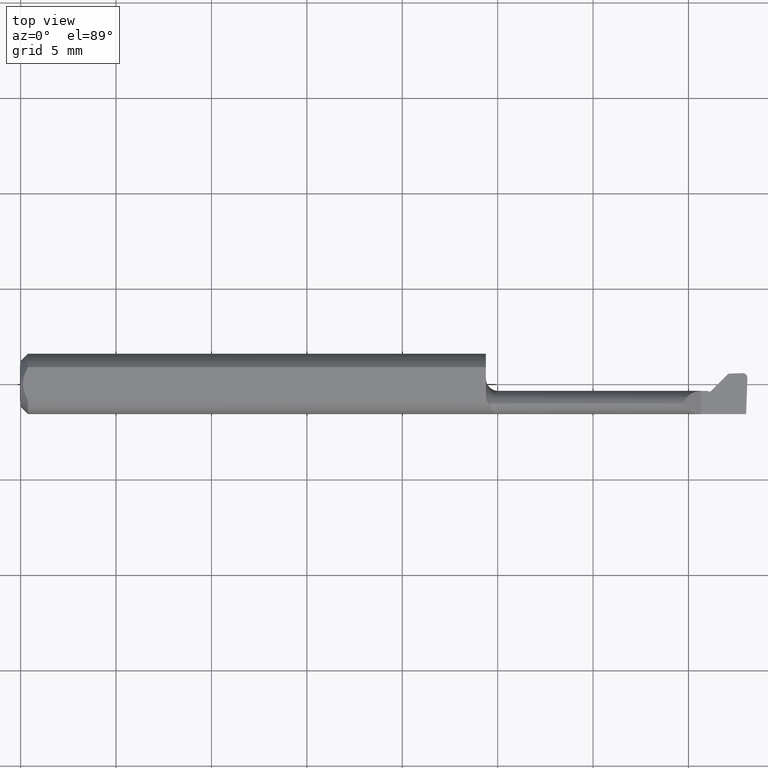
[diagram: clean part render]
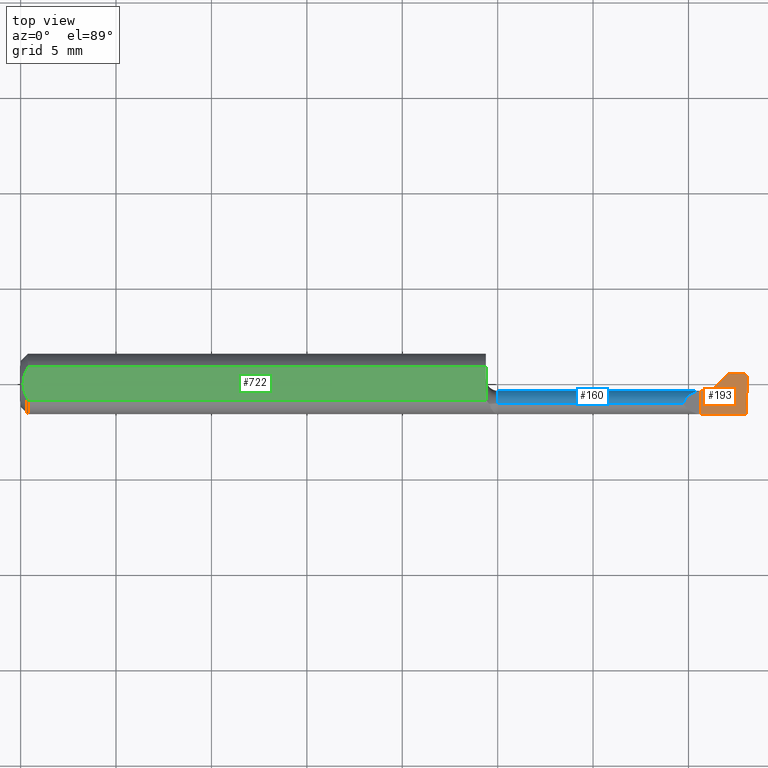
[diagram: same view with three faces highlighted in distinct colors, each labeled with its STEP entity id]
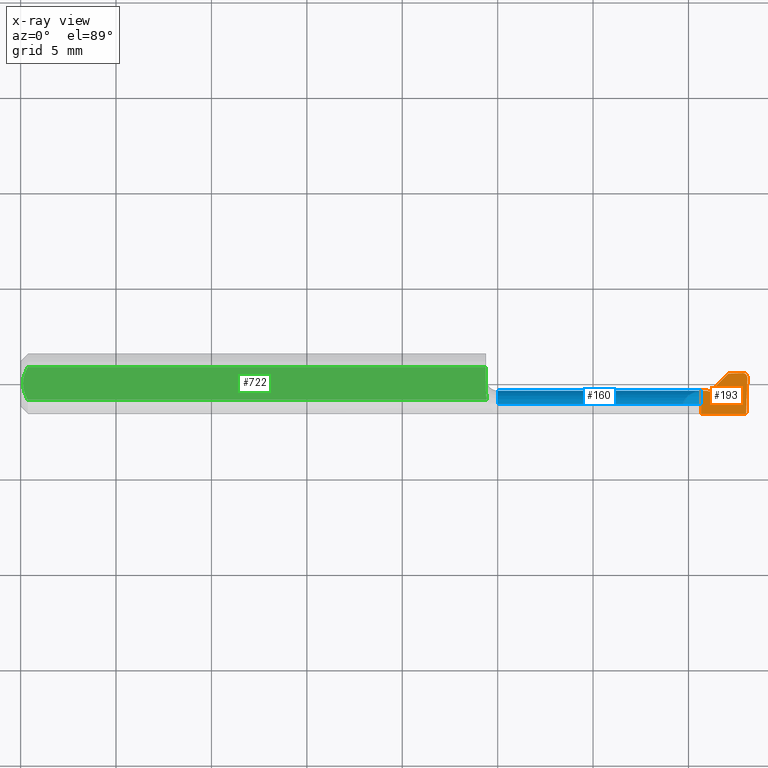
[diagram: x-ray of the same camera — body ghosted, the three highlighted faces saturated]
A machine part, top view with three faces highlighted in distinct colors.
The next image is the same camera in x-ray (body ghosted, the three faces saturated) — at least one of them is partly hidden behind the body in this view.
Their STEP definitions:

[orange] entity #193 — the highlighted planar face has unit normal (-0, 0, -1).
#17 = VERTEX_POINT ( 'NONE', #121 ) ;
#19 = CARTESIAN_POINT ( 'NONE',  ( 1.404000000000000137, 0.07629532499999999717, -1.868634782302818344E-17 ) ) ;
#26 = VECTOR ( 'NONE', #220, 39.37007874015748143 ) ;
#28 = CARTESIAN_POINT ( 'NONE',  ( 1.489860275369516485, 0.02229009242530491722, -3.414809992080329023E-17 ) ) ;
#33 = CARTESIAN_POINT ( 'NONE',  ( 1.489637975266641767, 0.02228815012281870622, -3.414809992080329023E-17 ) ) ;
#45 = CARTESIAN_POINT ( 'NONE',  ( 1.424396830779669498, -0.01434999999999999991, -3.414809992080329023E-17 ) ) ;
#48 = VERTEX_POINT ( 'NONE', #232 ) ;
#77 = CARTESIAN_POINT ( 'NONE',  ( 1.489860275369516485, 0.02229009242530491722, -3.414809992080329023E-17 ) ) ;
#85 = CARTESIAN_POINT ( 'NONE',  ( 1.418322500980937706, -0.01527816118568727476, -3.414809992080329023E-17 ) ) ;
#90 = CARTESIAN_POINT ( 'NONE',  ( 1.489860275369516485, 0.02229009242530491722, -3.414809992080329023E-17 ) ) ;
#100 = CARTESIAN_POINT ( 'NONE',  ( 1.459999999999999964, 0.02125316922033035003, -1.868634782302818344E-17 ) ) ;
#107 = CARTESIAN_POINT ( 'NONE',  ( 1.404000000000000137, -0.06234999999999997489, -1.868634782302818344E-17 ) ) ;
#121 = CARTESIAN_POINT ( 'NONE',  ( 1.424396830779669498, -0.01434999999999999991, -3.414809992080329023E-17 ) ) ;
#124 = CARTESIAN_POINT ( 'NONE',  ( 1.501625826761487925, 0.07286055374312545851, -1.868634782302818344E-17 ) ) ;
#129 = DIRECTION ( 'NONE',  ( -0.000000000000000000, 0.000000000000000000, -1.000000000000000000 ) ) ;
#144 = FACE_OUTER_BOUND ( 'NONE', #531, .T. ) ;
#159 = VERTEX_POINT ( 'NONE', #591 ) ;
#165 = CARTESIAN_POINT ( 'NONE',  ( 0.9600000000000001865, -0.01435000000000000338, -1.868634782302818344E-17 ) ) ;
#172 =( BOUNDED_CURVE ( )  B_SPLINE_CURVE ( 3, ( #551, #815, #216, #28 ),
 .UNSPECIFIED., .F., .T. ) 
 B_SPLINE_CURVE_WITH_KNOTS ( ( 4, 4 ),
 ( 1.910170056356173651, 3.471551771640491779 ),
 .UNSPECIFIED. ) 
 CURVE ( )  GEOMETRIC_REPRESENTATION_ITEM ( )  RATIONAL_B_SPLINE_CURVE ( ( 1.000000000000000000, 0.8069516682904512850, 0.8069516682904512850, 1.000000000000000000 ) ) 
 REPRESENTATION_ITEM ( '' )  );
#188 = DIRECTION ( 'NONE',  ( 0.9993908270190959842, 0.03489949670249409969, 0.000000000000000000 ) ) ;
#190 = ORIENTED_EDGE ( 'NONE', *, *, #774, .T. ) ;
#192 = DIRECTION ( 'NONE',  ( 0.03516126301290131706, 0.9993816516143056994, 0.000000000000000000 ) ) ;
#193 = ADVANCED_FACE ( 'NONE', ( #144 ), #530, .F. ) ;
#200 = CARTESIAN_POINT ( 'NONE',  ( -0.7049915027849358307, -0.05435000000000000248, -1.868634782302818344E-17 ) ) ;
#203 = EDGE_CURVE ( 'NONE', #572, #840, #667, .T. ) ;
#211 = CARTESIAN_POINT ( 'NONE',  ( 1.499475125171861878, 0.01173158616361657906, -1.868634782302818344E-17 ) ) ;
#216 = CARTESIAN_POINT ( 'NONE',  ( 1.495721480118110014, 0.02229009242530486865, -3.414809992080328407E-17 ) ) ;
#217 = LINE ( 'NONE', #281, #589 ) ;
#220 = DIRECTION ( 'NONE',  ( -0.000000000000000000, 1.000000000000000000, -0.000000000000000000 ) ) ;
#232 = CARTESIAN_POINT ( 'NONE',  ( 1.404000000000000137, -0.01435000000000000338, -1.868634782302818344E-17 ) ) ;
#264 =( BOUNDED_CURVE ( )  B_SPLINE_CURVE ( 3, ( #45, #303, #507, #443 ),
 .UNSPECIFIED., .F., .T. ) 
 B_SPLINE_CURVE_WITH_KNOTS ( ( 4, 4 ),
 ( 3.141592653589805550, 3.909660172168366810 ),
 .UNSPECIFIED. ) 
 CURVE ( )  GEOMETRIC_REPRESENTATION_ITEM ( )  RATIONAL_B_SPLINE_CURVE ( ( 1.000000000000000000, 0.9514405870031131807, 0.9514405870031131807, 1.000000000000000000 ) ) 
 REPRESENTATION_ITEM ( '' )  );
#271 = ORIENTED_EDGE ( 'NONE', *, *, #321, .T. ) ;
#281 = CARTESIAN_POINT ( 'NONE',  ( 1.384396830779669463, -0.05435000000000000248, -1.868634782302818344E-17 ) ) ;
#290 = ORIENTED_EDGE ( 'NONE', *, *, #203, .F. ) ;
#294 = EDGE_CURVE ( 'NONE', #17, #444, #217, .T. ) ;
#303 = CARTESIAN_POINT ( 'NONE',  ( 1.423468669593982661, -0.01527816118568737017, -3.414809992080329023E-17 ) ) ;
#321 = EDGE_CURVE ( 'NONE', #159, #460, #323, .T. ) ;
#323 =( BOUNDED_CURVE ( )  B_SPLINE_CURVE ( 3, ( #427, #419, #85, #486 ),
 .UNSPECIFIED., .F., .T. ) 
 B_SPLINE_CURVE_WITH_KNOTS ( ( 4, 4 ),
 ( 3.909660172168366810, 4.677727690746855238 ),
 .UNSPECIFIED. ) 
 CURVE ( )  GEOMETRIC_REPRESENTATION_ITEM ( )  RATIONAL_B_SPLINE_CURVE ( ( 1.000000000000000000, 0.9514405870031221735, 0.9514405870031221735, 1.000000000000000000 ) ) 
 REPRESENTATION_ITEM ( '' )  );
#326 = VECTOR ( 'NONE', #364, 39.37007874015748143 ) ;
#338 = DIRECTION ( 'NONE',  ( -1.000000000000000000, -0.000000000000000000, -0.000000000000000000 ) ) ;
#351 = EDGE_CURVE ( 'NONE', #368, #849, #710, .T. ) ;
#364 = DIRECTION ( 'NONE',  ( 1.000000000000000000, 0.000000000000000000, 0.000000000000000000 ) ) ;
#368 = VERTEX_POINT ( 'NONE', #77 ) ;
#384 = EDGE_CURVE ( 'NONE', #48, #460, #832, .T. ) ;
#387 = LINE ( 'NONE', #124, #563 ) ;
#392 = DIRECTION ( 'NONE',  ( -1.000000000000000000, 0.000000000000000000, 0.000000000000000000 ) ) ;
#393 = AXIS2_PLACEMENT_3D ( 'NONE', #459, #129, #392 ) ;
#419 = CARTESIAN_POINT ( 'NONE',  ( 1.419577762757901818, -0.01577870063100019621, -3.414809992080329023E-17 ) ) ;
#422 = CARTESIAN_POINT ( 'NONE',  ( 1.489749160540764450, 0.02229009242530491722, -3.414809992080329023E-17 ) ) ;
#427 = CARTESIAN_POINT ( 'NONE',  ( 1.420912931156426362, -0.01577870063100024131, -3.414809992080329023E-17 ) ) ;
#443 = CARTESIAN_POINT ( 'NONE',  ( 1.420912931156426362, -0.01577870063100024131, -3.414809992080329023E-17 ) ) ;
#444 = VERTEX_POINT ( 'NONE', #100 ) ;
#459 = CARTESIAN_POINT ( 'NONE',  ( 1.404000000000000137, 0.07629532499999999717, -1.868634782302818344E-17 ) ) ;
#460 = VERTEX_POINT ( 'NONE', #696 ) ;
#475 = CARTESIAN_POINT ( 'NONE',  ( 1.500000000000000222, -0.06234999999999999570, -1.868634782302818344E-17 ) ) ;
#482 = EDGE_CURVE ( 'NONE', #17, #159, #264, .T. ) ;
#486 = CARTESIAN_POINT ( 'NONE',  ( 1.417330010150673170, -0.01434999999999999991, -2.088037832836537652E-17 ) ) ;
#507 = CARTESIAN_POINT ( 'NONE',  ( 1.422248099554950906, -0.01577870063100029335, -3.414809992080329023E-17 ) ) ;
#508 = VECTOR ( 'NONE', #188, 39.37007874015748143 ) ;
#516 = EDGE_CURVE ( 'NONE', #444, #849, #595, .T. ) ;
#530 = PLANE ( 'NONE',  #393 ) ;
#531 = EDGE_LOOP ( 'NONE', ( #631, #190, #729, #672, #587, #829, #271, #684, #810, #290 ) ) ;
#543 = LINE ( 'NONE', #19, #26 ) ;
#551 = CARTESIAN_POINT ( 'NONE',  ( 1.499475125171861878, 0.01173158616361657906, -1.868634782302818344E-17 ) ) ;
#563 = VECTOR ( 'NONE', #192, 39.37007874015748854 ) ;
#568 = CARTESIAN_POINT ( 'NONE',  ( 1.489526749937449601, 0.02228426604873630368, -1.868634782302818344E-17 ) ) ;
#572 = VERTEX_POINT ( 'NONE', #797 ) ;
#587 = ORIENTED_EDGE ( 'NONE', *, *, #294, .F. ) ;
#589 = VECTOR ( 'NONE', #817, 39.37007874015748143 ) ;
#591 = CARTESIAN_POINT ( 'NONE',  ( 1.420912931156426362, -0.01577870063100024131, -3.414809992080329023E-17 ) ) ;
#595 = LINE ( 'NONE', #200, #508 ) ;
#599 = EDGE_CURVE ( 'NONE', #572, #716, #387, .T. ) ;
#631 = ORIENTED_EDGE ( 'NONE', *, *, #599, .T. ) ;
#634 = VECTOR ( 'NONE', #338, 39.37007874015748143 ) ;
#667 = LINE ( 'NONE', #475, #634 ) ;
#672 = ORIENTED_EDGE ( 'NONE', *, *, #516, .F. ) ;
#684 = ORIENTED_EDGE ( 'NONE', *, *, #384, .F. ) ;
#687 = CARTESIAN_POINT ( 'NONE',  ( 1.489526749937449601, 0.02228426604873630368, -1.868634782302818344E-17 ) ) ;
#689 = EDGE_CURVE ( 'NONE', #840, #48, #543, .T. ) ;
#696 = CARTESIAN_POINT ( 'NONE',  ( 1.417330010150673170, -0.01434999999999999991, -2.088037832836537652E-17 ) ) ;
#710 =( BOUNDED_CURVE ( )  B_SPLINE_CURVE ( 3, ( #90, #422, #33, #687 ),
 .UNSPECIFIED., .F., .T. ) 
 B_SPLINE_CURVE_WITH_KNOTS ( ( 4, 4 ),
 ( 3.471551771640491779, 3.504617554267220214 ),
 .UNSPECIFIED. ) 
 CURVE ( )  GEOMETRIC_REPRESENTATION_ITEM ( )  RATIONAL_B_SPLINE_CURVE ( ( 1.000000000000000000, 0.9999088899102779315, 0.9999088899102779315, 1.000000000000000000 ) ) 
 REPRESENTATION_ITEM ( '' )  );
#716 = VERTEX_POINT ( 'NONE', #211 ) ;
#729 = ORIENTED_EDGE ( 'NONE', *, *, #351, .T. ) ;
#774 = EDGE_CURVE ( 'NONE', #716, #368, #172, .T. ) ;
#797 = CARTESIAN_POINT ( 'NONE',  ( 1.496868711364579774, -0.06234999999999999570, 4.055086865595390561E-17 ) ) ;
#810 = ORIENTED_EDGE ( 'NONE', *, *, #689, .F. ) ;
#815 = CARTESIAN_POINT ( 'NONE',  ( 1.499693155325008798, 0.01792861425315410429, -3.414809992080328407E-17 ) ) ;
#817 = DIRECTION ( 'NONE',  ( 0.7071067811865487940, 0.7071067811865462405, 0.000000000000000000 ) ) ;
#829 = ORIENTED_EDGE ( 'NONE', *, *, #482, .T. ) ;
#832 = LINE ( 'NONE', #165, #326 ) ;
#840 = VERTEX_POINT ( 'NONE', #107 ) ;
#849 = VERTEX_POINT ( 'NONE', #568 ) ;

[blue] entity #160 — the highlighted cylindrical surface (edge-blend (fillet) strip) has radius 1.016 mm, axis along (-1, -0, -0).
#1 = ORIENTED_EDGE ( 'NONE', *, *, #312, .T. ) ;
#8 = CARTESIAN_POINT ( 'NONE',  ( 1.419915230768872272, -0.01699089539773420560, -0.01439561947543335080 ) ) ;
#24 = CARTESIAN_POINT ( 'NONE',  ( 1.404000000000000137, -0.05435000000000000248, 0.000000000000000000 ) ) ;
#32 = DIRECTION ( 'NONE',  ( 1.000000000000000000, 0.000000000000000000, 0.000000000000000000 ) ) ;
#48 = VERTEX_POINT ( 'NONE', #232 ) ;
#68 = CARTESIAN_POINT ( 'NONE',  ( 1.422712439989037625, -0.01906001227003338225, -0.01884615724845115081 ) ) ;
#74 = CARTESIAN_POINT ( 'NONE',  ( 1.404000000000000137, -0.01435153127931018679, 0.0003499999999998593212 ) ) ;
#84 = CARTESIAN_POINT ( 'NONE',  ( 1.386600631440081832, -0.01450378158265291581, 0.01774936855991811335 ) ) ;
#87 = CARTESIAN_POINT ( 'NONE',  ( 1.366637638336717808, -0.04101666666666663186, 0.03771236166328252593 ) ) ;
#125 = CARTESIAN_POINT ( 'NONE',  ( 1.421099400577166216, -0.01801694594202882943, -0.01675241242363837216 ) ) ;
#136 = CARTESIAN_POINT ( 'NONE',  ( 1.423438204101229454, -0.01942537668648443641, -0.01950097493947458918 ) ) ;
#145 = VERTEX_POINT ( 'NONE', #853 ) ;
#149 = CARTESIAN_POINT ( 'NONE',  ( 1.424396830779669498, -0.01948994711072783367, -0.01961572615421481106 ) ) ;
#153 = CARTESIAN_POINT ( 'NONE',  ( 1.372437649892632727, -0.02461175665807491600, 0.03191235010736733629 ) ) ;
#155 = CARTESIAN_POINT ( 'NONE',  ( 0.9850000000000000977, -0.04101666666666662492, 0.03771236166328252593 ) ) ;
#160 = ADVANCED_FACE ( 'NONE', ( #270 ), #723, .T. ) ;
#165 = CARTESIAN_POINT ( 'NONE',  ( 0.9600000000000001865, -0.01435000000000000338, -1.868634782302818344E-17 ) ) ;
#212 = AXIS2_PLACEMENT_3D ( 'NONE', #557, #32, #739 ) ;
#226 = CIRCLE ( 'NONE', #856, 0.04000000000000000083 ) ;
#231 = DIRECTION ( 'NONE',  ( -1.000000000000000000, -1.244524452569355806E-16, 0.000000000000000000 ) ) ;
#232 = CARTESIAN_POINT ( 'NONE',  ( 1.404000000000000137, -0.01435000000000000338, -1.868634782302818344E-17 ) ) ;
#233 = EDGE_CURVE ( 'NONE', #379, #460, #633, .T. ) ;
#234 = DIRECTION ( 'NONE',  ( 1.000000000000000000, 1.244524452569355806E-16, -0.000000000000000000 ) ) ;
#247 = LINE ( 'NONE', #577, #493 ) ;
#252 = ORIENTED_EDGE ( 'NONE', *, *, #384, .T. ) ;
#256 = DIRECTION ( 'NONE',  ( -1.000000000000000000, -0.000000000000000000, -0.000000000000000000 ) ) ;
#257 = VERTEX_POINT ( 'NONE', #345 ) ;
#265 = CARTESIAN_POINT ( 'NONE',  ( 1.419366229479324337, -0.01638025399512944846, -0.01271276119788355627 ) ) ;
#270 = FACE_OUTER_BOUND ( 'NONE', #754, .T. ) ;
#289 = CARTESIAN_POINT ( 'NONE',  ( 1.424396830779669498, -0.05435000000000000248, 0.000000000000000000 ) ) ;
#312 = EDGE_CURVE ( 'NONE', #257, #48, #226, .T. ) ;
#326 = VECTOR ( 'NONE', #364, 39.37007874015748143 ) ;
#332 = VERTEX_POINT ( 'NONE', #155 ) ;
#335 = CARTESIAN_POINT ( 'NONE',  ( 1.421556161090608894, -0.01837928198512513850, -0.01751194799298180435 ) ) ;
#345 = CARTESIAN_POINT ( 'NONE',  ( 1.404000000000000137, -0.01435153127931018679, 0.0003499999999998593212 ) ) ;
#354 = DIRECTION ( 'NONE',  ( 0.000000000000000000, 0.000000000000000000, 1.000000000000000000 ) ) ;
#357 = CARTESIAN_POINT ( 'NONE',  ( 1.417505296302231210, -0.01448268693777013394, -0.003741514297625500238 ) ) ;
#358 = EDGE_CURVE ( 'NONE', #379, #515, #561, .T. ) ;
#364 = DIRECTION ( 'NONE',  ( 1.000000000000000000, 0.000000000000000000, 0.000000000000000000 ) ) ;
#379 = VERTEX_POINT ( 'NONE', #149 ) ;
#384 = EDGE_CURVE ( 'NONE', #48, #460, #832, .T. ) ;
#385 = ORIENTED_EDGE ( 'NONE', *, *, #779, .T. ) ;
#388 = CARTESIAN_POINT ( 'NONE',  ( 1.418061252728686883, -0.01499614087871085910, -0.007394278349028236656 ) ) ;
#400 = DIRECTION ( 'NONE',  ( 0.000000000000000000, 0.000000000000000000, 1.000000000000000000 ) ) ;
#428 = ORIENTED_EDGE ( 'NONE', *, *, #715, .F. ) ;
#439 = EDGE_CURVE ( 'NONE', #515, #145, #247, .T. ) ;
#460 = VERTEX_POINT ( 'NONE', #696 ) ;
#467 = VECTOR ( 'NONE', #234, 39.37007874015748143 ) ;
#471 = CARTESIAN_POINT ( 'NONE',  ( 1.424396830779669498, -0.01948994711072783367, -0.01961572615421481106 ) ) ;
#484 = DIRECTION ( 'NONE',  ( -1.000000000000000000, -0.000000000000000000, -0.000000000000000000 ) ) ;
#489 = CARTESIAN_POINT ( 'NONE',  ( 1.417330010150673170, -0.01434999999999999991, -2.088037832836537652E-17 ) ) ;
#493 = VECTOR ( 'NONE', #231, 39.37007874015748143 ) ;
#503 = ORIENTED_EDGE ( 'NONE', *, *, #233, .F. ) ;
#513 = CARTESIAN_POINT ( 'NONE',  ( 1.424396830779669498, -0.04101666666666663880, -0.03771236166328252593 ) ) ;
#515 = VERTEX_POINT ( 'NONE', #513 ) ;
#557 = CARTESIAN_POINT ( 'NONE',  ( 0.9850000000000000977, -0.05435000000000000248, 0.000000000000000000 ) ) ;
#561 = CIRCLE ( 'NONE', #786, 0.04000000000000000083 ) ;
#577 = CARTESIAN_POINT ( 'NONE',  ( 1.242237562585930988, -0.04101666666666664574, -0.03771236166328252593 ) ) ;
#590 = CIRCLE ( 'NONE', #212, 0.04000000000000000083 ) ;
#592 =( BOUNDED_CURVE ( )  B_SPLINE_CURVE ( 3, ( #74, #84, #153, #87 ),
 .UNSPECIFIED., .F., .T. ) 
 B_SPLINE_CURVE_WITH_KNOTS ( ( 4, 4 ),
 ( 4.721139092042179186, 5.943348397725461751 ),
 .UNSPECIFIED. ) 
 CURVE ( )  GEOMETRIC_REPRESENTATION_ITEM ( )  RATIONAL_B_SPLINE_CURVE ( ( 1.000000000000000000, 0.8793431321437081838, 0.8793431321437081838, 1.000000000000000000 ) ) 
 REPRESENTATION_ITEM ( '' )  );
#615 = CARTESIAN_POINT ( 'NONE',  ( 1.417305168556085793, -0.01435000000000000858, -0.001891708722000657152 ) ) ;
#633 = B_SPLINE_CURVE_WITH_KNOTS ( 'NONE', 3,
 ( #471, #136, #68, #335, #125, #8, #265, #737, #388, #357, #615, #489 ),
 .UNSPECIFIED., .F., .F.,
 ( 4, 2, 2, 2, 2, 4 ),
 ( 0.000000000000000000, 7.222839958604483548E-05, 0.0001444567991720896710, 0.0002889135983441793419, 0.0004333703975162691213, 0.0005778271966883589007 ),
 .UNSPECIFIED. ) ;
#647 = ORIENTED_EDGE ( 'NONE', *, *, #358, .T. ) ;
#657 = ORIENTED_EDGE ( 'NONE', *, *, #850, .T. ) ;
#674 = CARTESIAN_POINT ( 'NONE',  ( 0.9600000000000001865, -0.05435000000000000248, 0.000000000000000000 ) ) ;
#696 = CARTESIAN_POINT ( 'NONE',  ( 1.417330010150673170, -0.01434999999999999991, -2.088037832836537652E-17 ) ) ;
#715 = EDGE_CURVE ( 'NONE', #257, #795, #592, .T. ) ;
#723 = CYLINDRICAL_SURFACE ( 'NONE', #769, 0.04000000000000000083 ) ;
#737 = CARTESIAN_POINT ( 'NONE',  ( 1.418432374176961330, -0.01538222876138452960, -0.009210250465852153415 ) ) ;
#739 = DIRECTION ( 'NONE',  ( 0.000000000000000000, 0.000000000000000000, -1.000000000000000000 ) ) ;
#748 = DIRECTION ( 'NONE',  ( 0.000000000000000000, 0.000000000000000000, 1.000000000000000000 ) ) ;
#754 = EDGE_LOOP ( 'NONE', ( #647, #784, #385, #657, #428, #1, #252, #503 ) ) ;
#765 = CARTESIAN_POINT ( 'NONE',  ( 1.242237562585930988, -0.04101666666666664574, 0.03771236166328252593 ) ) ;
#769 = AXIS2_PLACEMENT_3D ( 'NONE', #674, #256, #400 ) ;
#776 = CARTESIAN_POINT ( 'NONE',  ( 1.366637638336717808, -0.04101666666666663186, 0.03771236166328252593 ) ) ;
#779 = EDGE_CURVE ( 'NONE', #145, #332, #590, .T. ) ;
#784 = ORIENTED_EDGE ( 'NONE', *, *, #439, .T. ) ;
#786 = AXIS2_PLACEMENT_3D ( 'NONE', #289, #822, #354 ) ;
#795 = VERTEX_POINT ( 'NONE', #776 ) ;
#822 = DIRECTION ( 'NONE',  ( -1.000000000000000000, -0.000000000000000000, -0.000000000000000000 ) ) ;
#827 = LINE ( 'NONE', #765, #467 ) ;
#832 = LINE ( 'NONE', #165, #326 ) ;
#850 = EDGE_CURVE ( 'NONE', #332, #795, #827, .T. ) ;
#853 = CARTESIAN_POINT ( 'NONE',  ( 0.9850000000000000977, -0.04101666666666656941, -0.03771236166328255368 ) ) ;
#856 = AXIS2_PLACEMENT_3D ( 'NONE', #24, #484, #748 ) ;

[green] entity #722 — the highlighted planar face has unit normal (-0, 0, -1).
#15 = PLANE ( 'NONE',  #651 ) ;
#20 = CARTESIAN_POINT ( 'NONE',  ( 0.01215148319993578432, 0.02862325741844273796, 0.05235000000000001458 ) ) ;
#50 = ORIENTED_EDGE ( 'NONE', *, *, #752, .T. ) ;
#101 = VECTOR ( 'NONE', #612, 39.37007874015748143 ) ;
#112 = CARTESIAN_POINT ( 'NONE',  ( 0.01500000000000134386, -0.03386738844375219992, 0.05235000000000000764 ) ) ;
#131 = EDGE_CURVE ( 'NONE', #466, #420, #596, .T. ) ;
#164 = DIRECTION ( 'NONE',  ( 1.000000000000000000, 0.000000000000000000, 0.000000000000000000 ) ) ;
#169 = CARTESIAN_POINT ( 'NONE',  ( 0.9615945859696534148, -0.03386738844375219298, 0.05235000000000000764 ) ) ;
#208 = DIRECTION ( 'NONE',  ( -0.000000000000000000, 0.000000000000000000, -1.000000000000000000 ) ) ;
#209 = ORIENTED_EDGE ( 'NONE', *, *, #854, .F. ) ;
#214 = B_SPLINE_CURVE_WITH_KNOTS ( 'NONE', 3,
 ( #403, #858, #464, #317, #383, #337 ),
 .UNSPECIFIED., .F., .F.,
 ( 4, 2, 4 ),
 ( 0.003138065481210369073, 0.003587221268395912946, 0.004036377055581456819 ),
 .UNSPECIFIED. ) ;
#225 = CARTESIAN_POINT ( 'NONE',  ( 0.9600000000000001865, -0.01582108228875356293, 0.05235000000000000764 ) ) ;
#254 = EDGE_CURVE ( 'NONE', #761, #583, #791, .T. ) ;
#259 = CARTESIAN_POINT ( 'NONE',  ( 0.005000000000001387016, 6.414153026140964483E-18, 0.05235000000000000764 ) ) ;
#276 = CARTESIAN_POINT ( 'NONE',  ( 0.006070804952378321996, 0.01191432965610325807, 0.05235000000000000764 ) ) ;
#278 = CARTESIAN_POINT ( 'NONE',  ( 0.9599999999999990763, -0.02188348396873492779, 0.05235000000000000764 ) ) ;
#315 = VERTEX_POINT ( 'NONE', #225 ) ;
#317 = CARTESIAN_POINT ( 'NONE',  ( 0.009663423781324993397, -0.02320891702790696398, 0.05234999999999998682 ) ) ;
#324 = CARTESIAN_POINT ( 'NONE',  ( 1.500000000000000222, -0.03386738844375219298, 0.05235000000000000764 ) ) ;
#337 = CARTESIAN_POINT ( 'NONE',  ( 0.01500000000000134386, -0.03386738844375219992, 0.05235000000000000764 ) ) ;
#356 = FACE_OUTER_BOUND ( 'NONE', #372, .T. ) ;
#372 = EDGE_LOOP ( 'NONE', ( #738, #209, #593, #675, #603, #50 ) ) ;
#376 = EDGE_CURVE ( 'NONE', #654, #315, #555, .T. ) ;
#383 = CARTESIAN_POINT ( 'NONE',  ( 0.01215371382284740828, -0.02862736400430402478, 0.05235000000000000764 ) ) ;
#403 = CARTESIAN_POINT ( 'NONE',  ( 0.005000000000001387016, 6.414153026140964483E-18, 0.05235000000000000764 ) ) ;
#407 = CARTESIAN_POINT ( 'NONE',  ( 0.9600000000000001865, -0.01582108228875356293, 0.05235000000000000764 ) ) ;
#412 = CARTESIAN_POINT ( 'NONE',  ( 0.01500000000000134212, 0.03386738844375219992, 0.05235000000000000764 ) ) ;
#413 = CARTESIAN_POINT ( 'NONE',  ( 0.005000000000001387016, 6.414153026140964483E-18, 0.05235000000000000764 ) ) ;
#420 = VERTEX_POINT ( 'NONE', #112 ) ;
#452 = VECTOR ( 'NONE', #523, 39.37007874015748143 ) ;
#464 = CARTESIAN_POINT ( 'NONE',  ( 0.006072086686448084983, -0.01191816614558191892, 0.05235000000000001458 ) ) ;
#466 = VERTEX_POINT ( 'NONE', #169 ) ;
#488 = CARTESIAN_POINT ( 'NONE',  ( 0.9607753293838086073, -0.02787737692750389198, 0.05235000000000000764 ) ) ;
#497 = CARTESIAN_POINT ( 'NONE',  ( 1.500000000000000222, 0.03386738844375219298, 0.05235000000000000764 ) ) ;
#523 = DIRECTION ( 'NONE',  ( -1.000000000000000000, -0.000000000000000000, -0.000000000000000000 ) ) ;
#529 = EDGE_CURVE ( 'NONE', #583, #420, #214, .T. ) ;
#555 = LINE ( 'NONE', #825, #101 ) ;
#583 = VERTEX_POINT ( 'NONE', #259 ) ;
#593 = ORIENTED_EDGE ( 'NONE', *, *, #254, .T. ) ;
#596 = LINE ( 'NONE', #324, #452 ) ;
#603 = ORIENTED_EDGE ( 'NONE', *, *, #131, .F. ) ;
#611 = CARTESIAN_POINT ( 'NONE',  ( 0.9615945859696534148, -0.03386738844375219298, 0.05235000000000000764 ) ) ;
#612 = DIRECTION ( 'NONE',  ( 0.000000000000000000, -1.000000000000000000, 0.000000000000000000 ) ) ;
#614 = DIRECTION ( 'NONE',  ( -1.000000000000000000, 0.000000000000000000, 0.000000000000000000 ) ) ;
#645 = B_SPLINE_CURVE_WITH_KNOTS ( 'NONE', 3,
 ( #611, #488, #278, #407 ),
 .UNSPECIFIED., .F., .F.,
 ( 4, 4 ),
 ( 5.421010862427522170E-19, 0.0004601621129704501771 ),
 .UNSPECIFIED. ) ;
#651 = AXIS2_PLACEMENT_3D ( 'NONE', #824, #208, #614 ) ;
#654 = VERTEX_POINT ( 'NONE', #692 ) ;
#675 = ORIENTED_EDGE ( 'NONE', *, *, #529, .T. ) ;
#683 = CARTESIAN_POINT ( 'NONE',  ( 0.005000000000001388750, 0.005922407101183794174, 0.05235000000000000070 ) ) ;
#690 = VECTOR ( 'NONE', #164, 39.37007874015748143 ) ;
#692 = CARTESIAN_POINT ( 'NONE',  ( 0.9600000000000001865, 0.03386738844375219992, 0.05235000000000000764 ) ) ;
#693 = CARTESIAN_POINT ( 'NONE',  ( 0.01500000000000134212, 0.03386738844375219992, 0.05235000000000000764 ) ) ;
#722 = ADVANCED_FACE ( 'NONE', ( #356 ), #15, .F. ) ;
#738 = ORIENTED_EDGE ( 'NONE', *, *, #376, .F. ) ;
#752 = EDGE_CURVE ( 'NONE', #466, #315, #645, .T. ) ;
#760 = CARTESIAN_POINT ( 'NONE',  ( 0.009665130484206837028, 0.02321408954762991736, 0.05235000000000001458 ) ) ;
#761 = VERTEX_POINT ( 'NONE', #412 ) ;
#791 = B_SPLINE_CURVE_WITH_KNOTS ( 'NONE', 3,
 ( #693, #20, #760, #276, #683, #413 ),
 .UNSPECIFIED., .F., .F.,
 ( 4, 2, 4 ),
 ( 0.002239757098154139970, 0.002688911289682254738, 0.003138065481210369073 ),
 .UNSPECIFIED. ) ;
#824 = CARTESIAN_POINT ( 'NONE',  ( 0.000000000000000000, 0.04793338999999999933, 0.05235000000000000764 ) ) ;
#825 = CARTESIAN_POINT ( 'NONE',  ( 0.9600000000000001865, 0.04793338999999999933, 0.05235000000000000764 ) ) ;
#834 = LINE ( 'NONE', #497, #690 ) ;
#854 = EDGE_CURVE ( 'NONE', #761, #654, #834, .T. ) ;
#858 = CARTESIAN_POINT ( 'NONE',  ( 0.005000000000001387016, -0.005922428141025059233, 0.05235000000000002152 ) ) ;